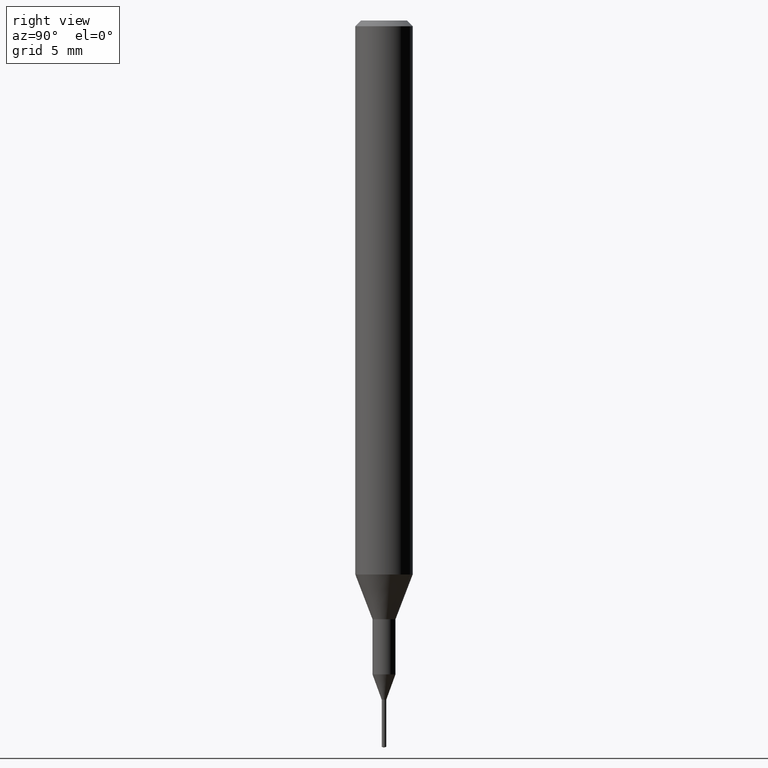
[diagram: clean part render]
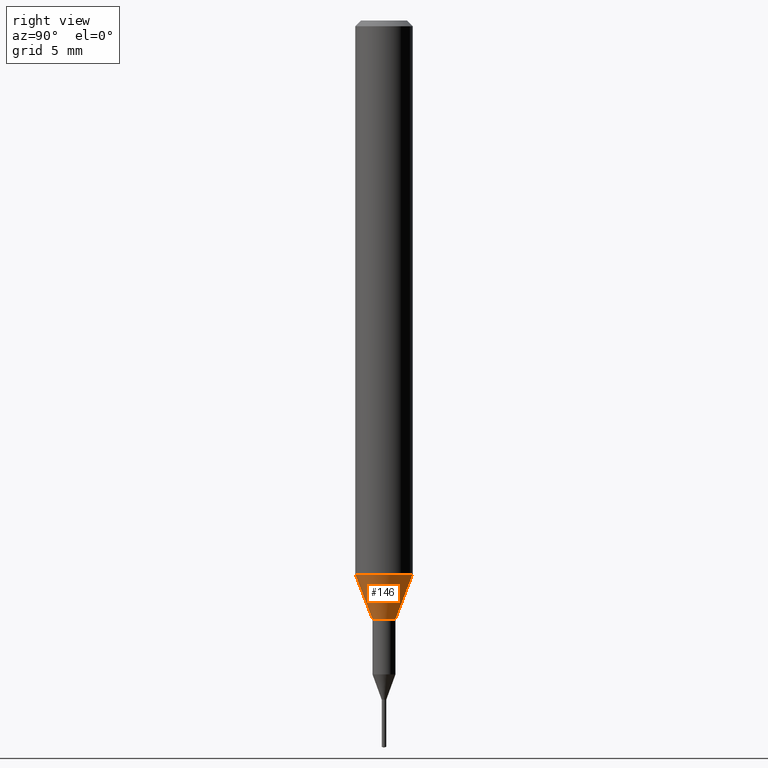
[diagram: same view with one face highlighted and labeled with its STEP entity id]
A machine part, right view. The second image highlights one B-rep face of the part: STEP entity #146.
In plain terms, the highlighted conical surface has half-angle 20.997 deg.
Its self-contained STEP definition (entity closure, byte-faithful):
#116=VERTEX_POINT('',#294);
#146=ADVANCED_FACE('',(#331),#332,.T.);
#154=VERTEX_POINT('',#341);
#172=VERTEX_POINT('',#362);
#180=EDGE_CURVE('',#116,#172,#370,.T.);
#210=EDGE_CURVE('',#248,#154,#402,.T.);
#220=EDGE_CURVE('',#154,#116,#413,.T.);
#230=EDGE_CURVE('',#248,#172,#423,.T.);
#248=VERTEX_POINT('',#445);
#294=CARTESIAN_POINT('',(7.34763812293426E-017,-0.6,-31.3));
#331=FACE_OUTER_BOUND('',#525,.T.);
#332=CONICAL_SURFACE('',#526,1.05,0.366459241971866);
#341=CARTESIAN_POINT('',(0.0,0.6,-31.3));
#362=CARTESIAN_POINT('',(1.83690953073357E-016,-1.5,-28.955));
#370=LINE('',#573,#574);
#402=LINE('',#620,#621);
#413=CIRCLE('',#637,0.6);
#423=CIRCLE('',#651,1.5);
#445=CARTESIAN_POINT('',(0.0,1.5,-28.955));
#525=EDGE_LOOP('',(#777,#778,#779,#780));
#526=AXIS2_PLACEMENT_3D('',#781,#782,#783);
#573=CARTESIAN_POINT('',(1.2858366715135E-016,-1.05,-30.1275));
#574=VECTOR('',#832,1.0);
#620=CARTESIAN_POINT('',(-1.2858366715135E-016,1.05,-30.1275));
#621=VECTOR('',#863,1.0);
#637=AXIS2_PLACEMENT_3D('',#872,#873,#874);
#651=AXIS2_PLACEMENT_3D('',#884,#885,#886);
#777=ORIENTED_EDGE('',*,*,#210,.F.);
#778=ORIENTED_EDGE('',*,*,#230,.T.);
#779=ORIENTED_EDGE('',*,*,#180,.F.);
#780=ORIENTED_EDGE('',*,*,#220,.F.);
#781=CARTESIAN_POINT('',(0.0,0.0,-30.1275));
#782=DIRECTION('',(-0.0,-0.0,1.0));
#783=DIRECTION('',(0.0,1.0,0.0));
#832=DIRECTION('',(4.38791184365088E-017,-0.358312026550805,0.93360189140182));
#863=DIRECTION('',(4.38791184365088E-017,-0.358312026550805,-0.93360189140182));
#872=CARTESIAN_POINT('',(0.0,0.0,-31.3));
#873=DIRECTION('',(0.0,0.0,-1.0));
#874=DIRECTION('',(0.0,1.0,0.0));
#884=CARTESIAN_POINT('',(0.0,0.0,-28.955));
#885=DIRECTION('',(0.0,0.0,-1.0));
#886=DIRECTION('',(0.0,1.0,0.0));